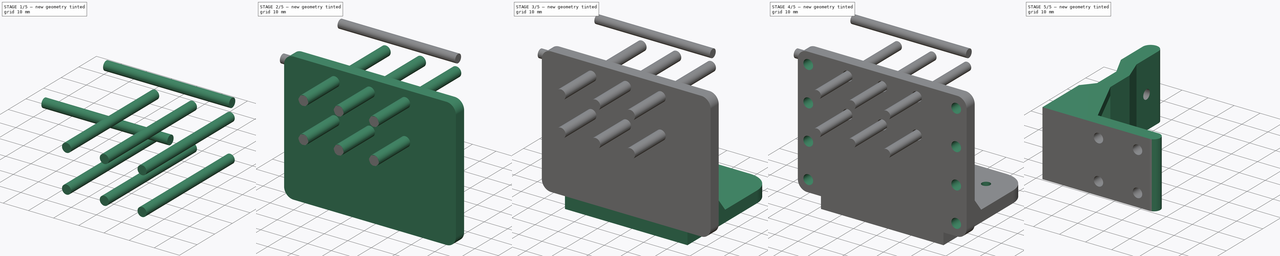
[diagram: build sequence overview — one tinted view per stage of 5, left to right]
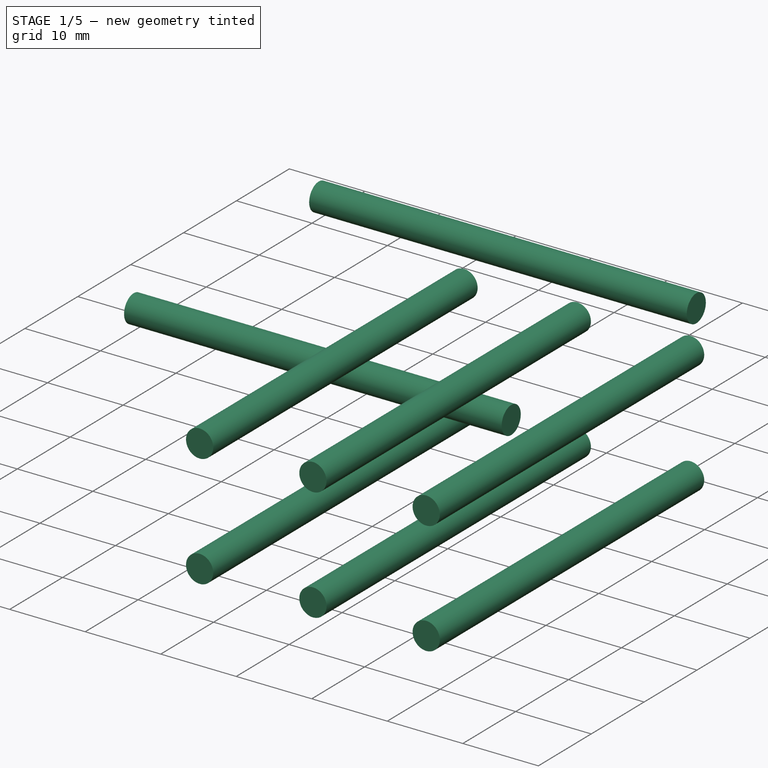
[diagram: stage 1 of 5 — iso view after this stage's code; geometry added in this stage tinted green]
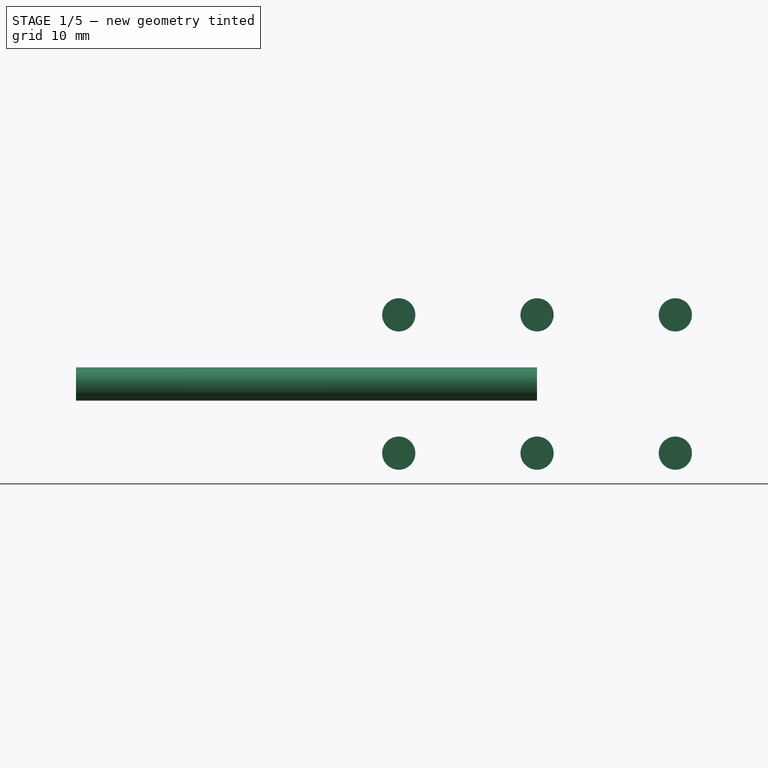
[diagram: stage 1 of 5 — front view after this stage's code; geometry added in this stage tinted green]
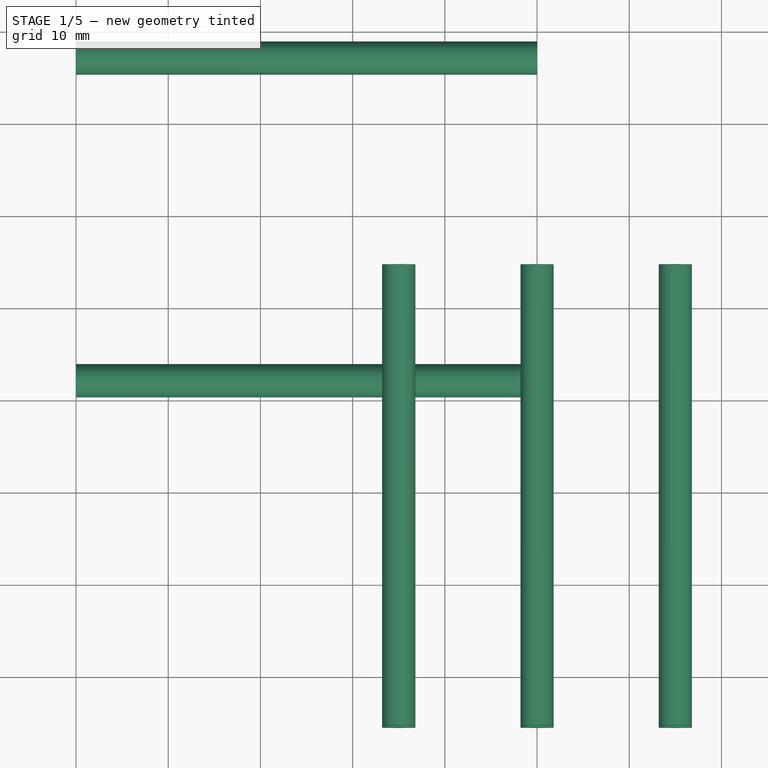
[diagram: stage 1 of 5 — top view after this stage's code; geometry added in this stage tinted green]
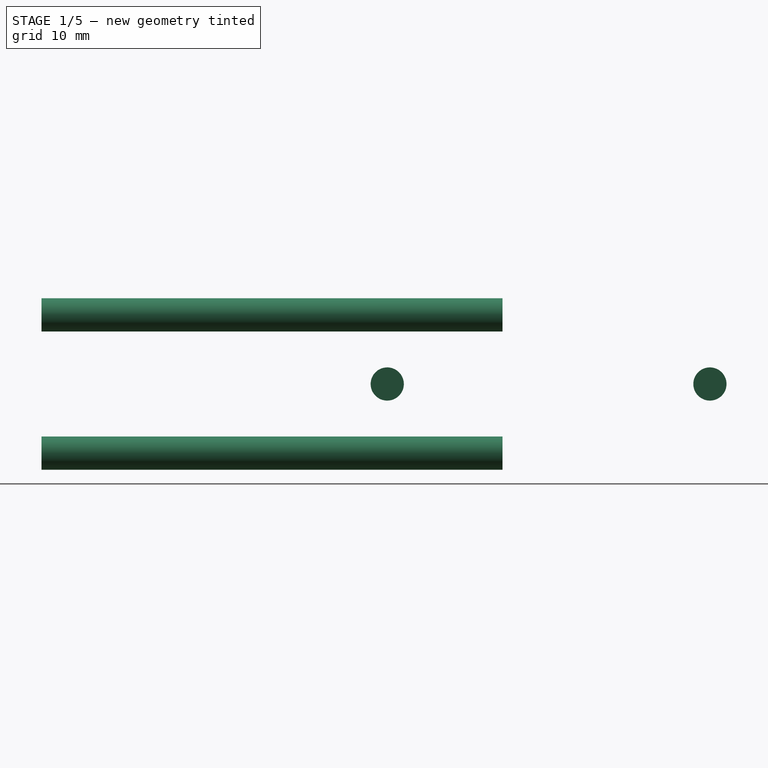
[diagram: stage 1 of 5 — right view after this stage's code; geometry added in this stage tinted green]
FCSTD DOCUMENT  (FreeCAD 0.21R33771 (Git))
Label: stepper_mount
License: All rights reserved
LicenseURL: http://en.wikipedia.org/wiki/All_rights_reserved
objects: Part::Cylinder×6, Part::FeaturePython×6, Part::MultiFuse×4, Sketcher::SketchObject×3, Part::Box×2, Part::Fillet×2, Part::Cut×2, Part::Extrusion×2, PartDesign::Pad×1, Spreadsheet::Sheet×1, Part::Mirroring×1
note: 24 computed .brp shape members not serialized (recipe doc carries the construction recipe); baked Part::Feature solids carry a one-line shape summary decoded from their .brp

FEATURE [Part::Cylinder] Cylinder100  label="bolt hole"
  Angle = 360
  AttacherType = Attacher::AttachEngine3D
  FirstAngle = 0
  Height = 50
  Placement = pos=(0,0,-25) rot=(0,0,1;0rad)
  Radius = 1.8
  SecondAngle = 0
  expr: .Placement.Base.z = -Height / 2
  expr: Radius = <<p_stepper>>.bolt_hole_r
FEATURE [Part::FeaturePython] Array004  label="bolt hole array"  # Draft array (typed FeaturePython)
  AlwaysSyncPlacement = false
  Angle = 360
  ArrayType = 0
  Axis = (0,0,1)
  Base = -> Cylinder100
  Center = (0,0,0)
  Count = 6
  ExpandArray = false
  Fuse = false
  IntervalAxis = (0,0,0)
  IntervalX = (15,0,0)
  IntervalY = (0,15,0)
  IntervalZ = (0,0,100)
  NumberCircles = 3
  NumberPolar = 5
  NumberX = 3
  NumberY = 2
  NumberZ = 1
  Placement = pos=(-15,-20.5,40) rot=(1,0,0;1.5708rad)
  PlacementList = 6 placements: [(0,0,-25),(0,15,-25),(15,0,-25),(15,15,-25),(30,0,-25),(30,15,-25)]
  RadialDistance = 50
  ScaleList = (6) [(1,1,1),(1,1,1),(1,1,1),(1,1,1),(1,1,1),(1,1,1)]
  Symmetry = 1
  TangentialDistance = 25
  expr: .Placement.Base.x = -.IntervalX.x * (3 - 1) / 2
  expr: .Placement.Base.y = -<<p_stepper>>.bolt_hole_dist / 2 - <<p_stepper>>.stepper_mount_wall
  expr: .Placement.Base.z = <<p_stepper>>.bottom_plate_size - .IntervalY.y
FEATURE [Part::Cylinder] Cylinder101  label="wall attachment hole"
  Angle = 360
  AttacherType = Attacher::AttachEngine3D
  FirstAngle = 0
  Height = 50
  Placement = pos=(-50,-8,47.5) rot=(0,1,0;1.5708rad)
  Radius = 1.8
  SecondAngle = 0
  expr: .Placement.Base.x = -Height
  expr: Radius = <<p_stepper>>.bolt_hole_r
FEATURE [Part::FeaturePython] Array005  label="wall attachment hole array"  # Draft array (typed FeaturePython)
  AlwaysSyncPlacement = false
  Angle = 360
  ArrayType = 0
  Axis = (0,0,1)
  Base = -> Cylinder101
  Center = (0,0,0)
  Count = 2
  ExpandArray = false
  Fuse = false
  IntervalAxis = (0,0,0)
  IntervalX = (100,0,0)
  IntervalY = (0,35,0)
  IntervalZ = (0,0,100)
  NumberCircles = 3
  NumberPolar = 5
  NumberX = 1
  NumberY = 2
  NumberZ = 1
  PlacementList = 2 placements: [(-50,-8,47.5),(-50,27,47.5)]
  RadialDistance = 50
  ScaleList = (2) [(1,1,1),(1,1,1)]
  Symmetry = 1
  TangentialDistance = 25
FEATURE [Part::MultiFuse] Fusion008  label="wall attachment hole fusion"
  Shapes = -> [Array004,Array005]
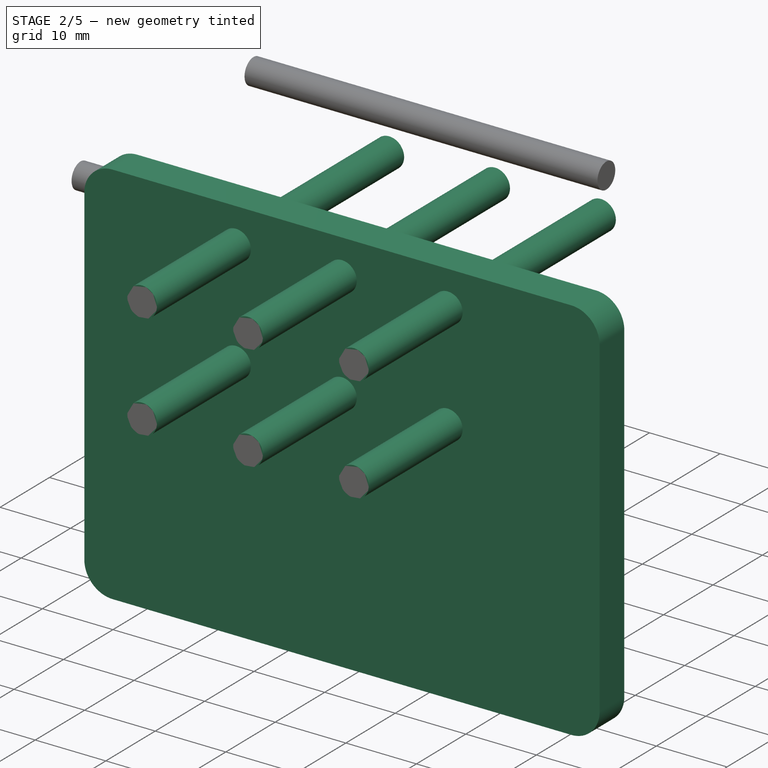
[diagram: stage 2 of 5 — iso view after this stage's code; geometry added in this stage tinted green]
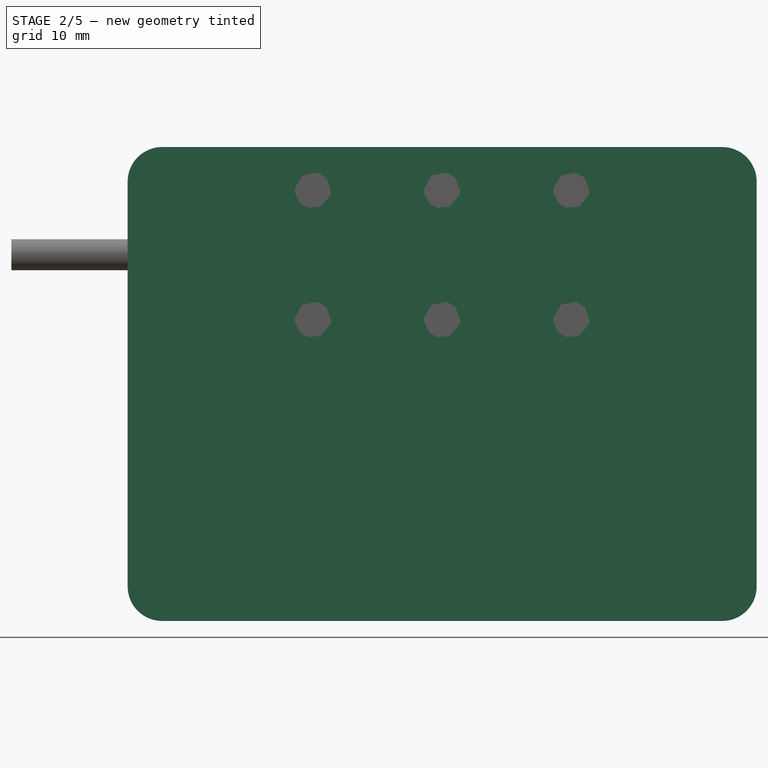
[diagram: stage 2 of 5 — front view after this stage's code; geometry added in this stage tinted green]
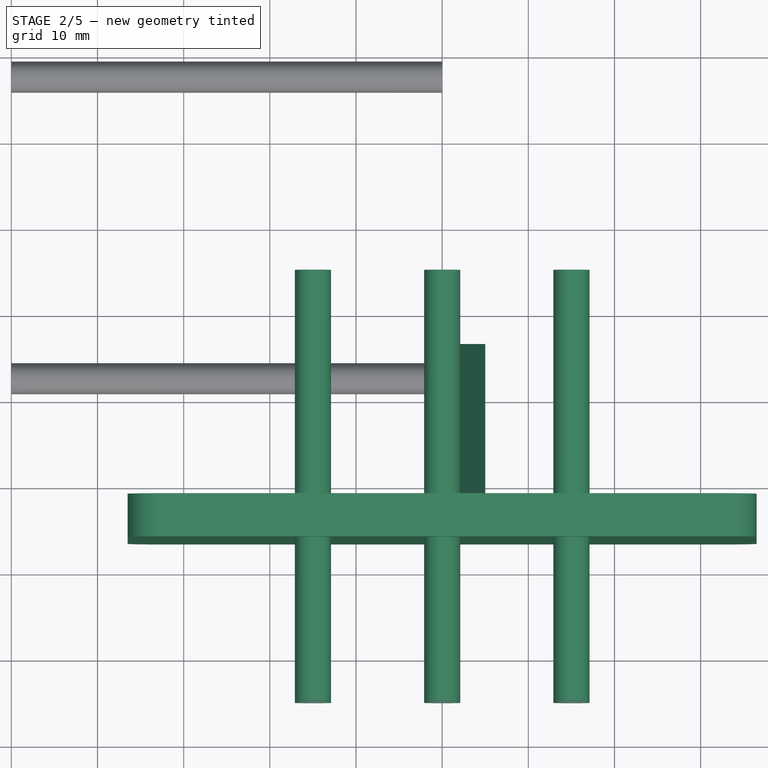
[diagram: stage 2 of 5 — top view after this stage's code; geometry added in this stage tinted green]
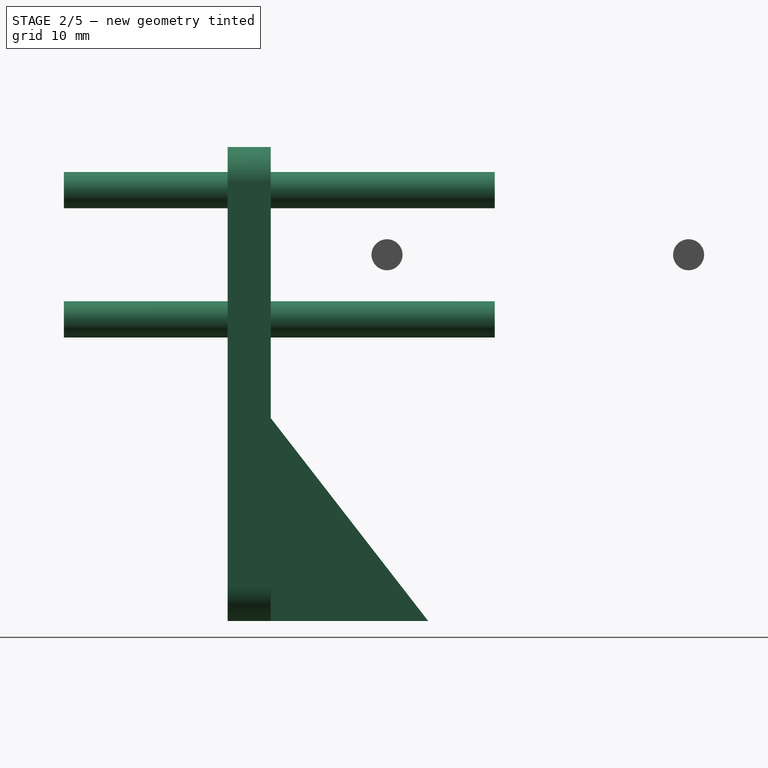
[diagram: stage 2 of 5 — right view after this stage's code; geometry added in this stage tinted green]
FEATURE [Part::Box] Box006  label="stepper mount bottom"
  AttacherType = Attacher::AttachEngine3D
  Height = 55
  Length = 73
  Placement = pos=(-36.5,-26.5,5) rot=(0,0,1;0rad)
  Width = 5
  expr: .Placement.Base.x = -Length / 2
  expr: .Placement.Base.y = -<<p_stepper>>.stepper_size / 2 - <<p_stepper>>.stepper_mount_wall
  expr: .Placement.Base.z = <<p_stepper>>.stepper_mount_wall
  expr: Height = <<p_stepper>>.bottom_plate_size
  expr: Length = <<p_stepper>>.stepper_size + 2 * <<p_stepper>>.stepper_mount_wall + 20 mm
  expr: Width = <<p_stepper>>.stepper_mount_wall
FEATURE [Sketcher::SketchObject] Sketch001
  FullyConstrained = false
  MapMode = 5
  Placement = pos=(0,0,0) rot=(0.57735,0.57735,0.57735;2.0944rad)
  expr: Constraints[6] = <<p_stepper>>.bottom_plate_size
  sketch-geometry (3):
    g0: LineSegment StartX=-26.5 StartY=5 StartZ=0 EndX=-3.22422 EndY=5 EndZ=0
    g1: LineSegment StartX=-3.22422 StartY=5 StartZ=0 EndX=-26.5 EndY=35 EndZ=0
    g2: LineSegment StartX=-26.5 StartY=35 StartZ=0 EndX=-26.5 EndY=5 EndZ=0
  constraints (7):
    c: Coincident(g0,g-3)
    c: Horizontal(g0)
    c: Coincident(g1,g0)
    c: Coincident(g2,g1)
    c: Coincident(g2,g0)
    c: Vertical(g2)
    c: DistanceY(g2,g2) = 55
FEATURE [PartDesign::Pad] Pad001
  Direction = (1,0,0)
  Length = 5
  Length2 = 100
  Placement = pos=(0,0,0) rot=(0.57735,0.57735,0.57735;2.0944rad)
  Profile = -> Sketch001
  Type = 0
  expr: Length = <<p_stepper>>.stepper_mount_wall
FEATURE [Spreadsheet::Sheet] Spreadsheet002  label="p_stepper"
  cells = A1='stepper_mount_wall; B1(stepper_mount_wall)==5 mm; A2='bolt_hole_dist; B2(bolt_hole_dist)==31 mm; A3='central_hole_r; B3(central_hole_r)==11.5 mm; A4='bolt_hole_r; B4(bolt_hole_r)==1.8 mm; A5='stepper_size; B5(stepper_size)==43 mm; A6='bottom_plate_size; B6(bottom_plate_size)==55 mm; A7='bottom_hole_r; B7(bottom_hole_r)==2.1 mm; A8='bottom_hole_x_dist; B8(bottom_hole_x_dist)==64 mm; A9='bottom_hole_y_dist; B9(bottom_hole_y_dist)==15 mm; A10='puller_hole_r; B10(puller_hole_r)==1.8 mm; A11='inserter_hole_r; B11(inserter_hole_r)==2.1 mm
FEATURE [Part::Fillet] Fillet  label="stepper mount bottom fillet"
  Base = -> Box006
  Edges = 4 edges r=4: [Edge2,Edge4,Edge6,Edge8]
FEATURE [Part::Cylinder] Cylinder099  label="inserter hole"
  Angle = 360
  AttacherType = Attacher::AttachEngine3D
  FirstAngle = 0
  Height = 50
  Placement = pos=(0,0,-25) rot=(0,0,1;0rad)
  Radius = 2.1
  SecondAngle = 0
  expr: .Placement.Base.z = -Height / 2
  expr: Radius = <<p_stepper>>.inserter_hole_r
FEATURE [Part::FeaturePython] Array003  label="inserter hole array"  # Draft array (typed FeaturePython)
  AlwaysSyncPlacement = false
  Angle = 360
  ArrayType = 0
  Axis = (0,0,1)
  Base = -> Cylinder099
  Center = (0,0,0)
  Count = 6
  ExpandArray = false
  Fuse = false
  IntervalAxis = (0,0,0)
  IntervalX = (15,0,0)
  IntervalY = (0,15,0)
  IntervalZ = (0,0,100)
  NumberCircles = 3
  NumberPolar = 5
  NumberX = 3
  NumberY = 2
  NumberZ = 1
  Placement = pos=(-15,-20.5,40) rot=(1,0,0;1.5708rad)
  PlacementList = 6 placements: [(0,0,-25),(0,15,-25),(15,0,-25),(15,15,-25),(30,0,-25),(30,15,-25)]
  RadialDistance = 50
  ScaleList = (6) [(1,1,1),(1,1,1),(1,1,1),(1,1,1),(1,1,1),(1,1,1)]
  Symmetry = 1
  TangentialDistance = 25
  expr: .Placement.Base.x = -.IntervalX.x * (3 - 1) / 2
  expr: .Placement.Base.y = -<<p_stepper>>.bolt_hole_dist / 2 - <<p_stepper>>.stepper_mount_wall
  expr: .Placement.Base.z = <<p_stepper>>.bottom_plate_size - .IntervalY.y
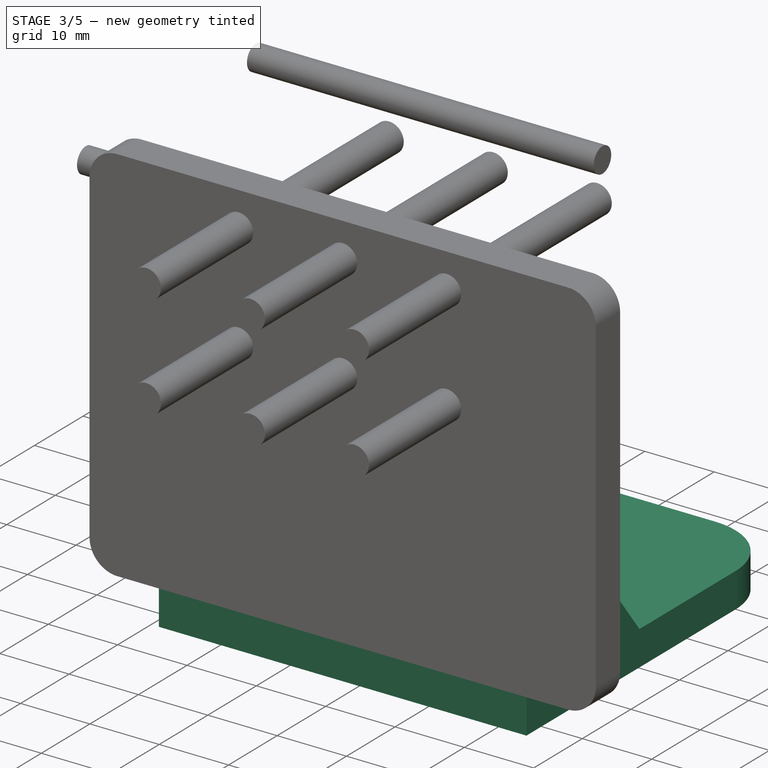
[diagram: stage 3 of 5 — iso view after this stage's code; geometry added in this stage tinted green]
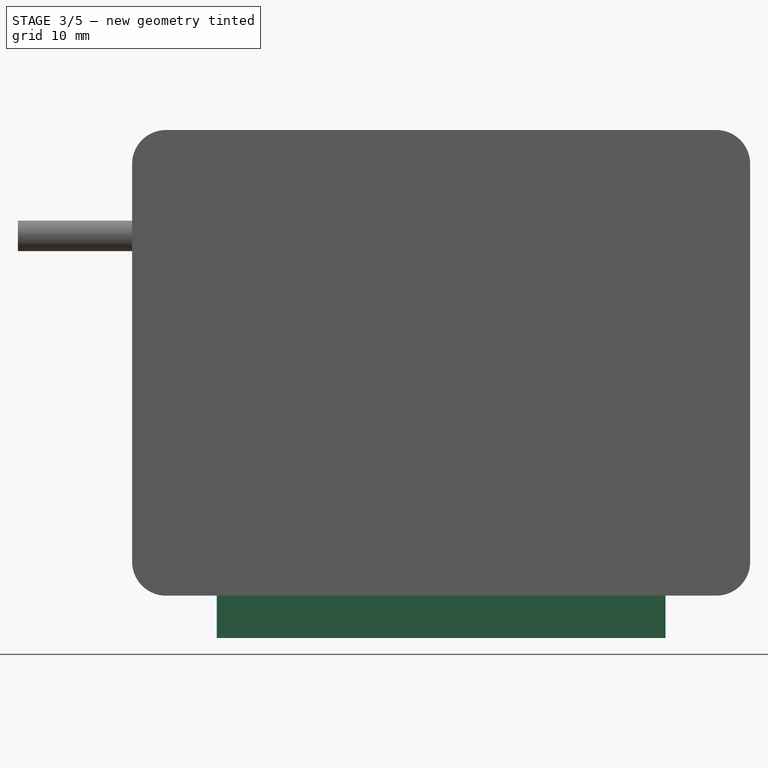
[diagram: stage 3 of 5 — front view after this stage's code; geometry added in this stage tinted green]
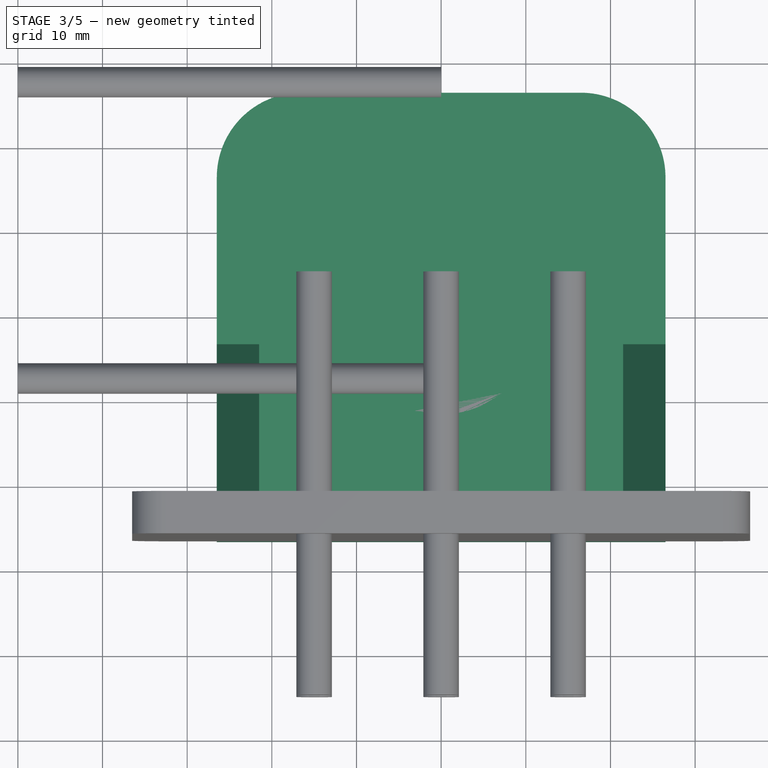
[diagram: stage 3 of 5 — top view after this stage's code; geometry added in this stage tinted green]
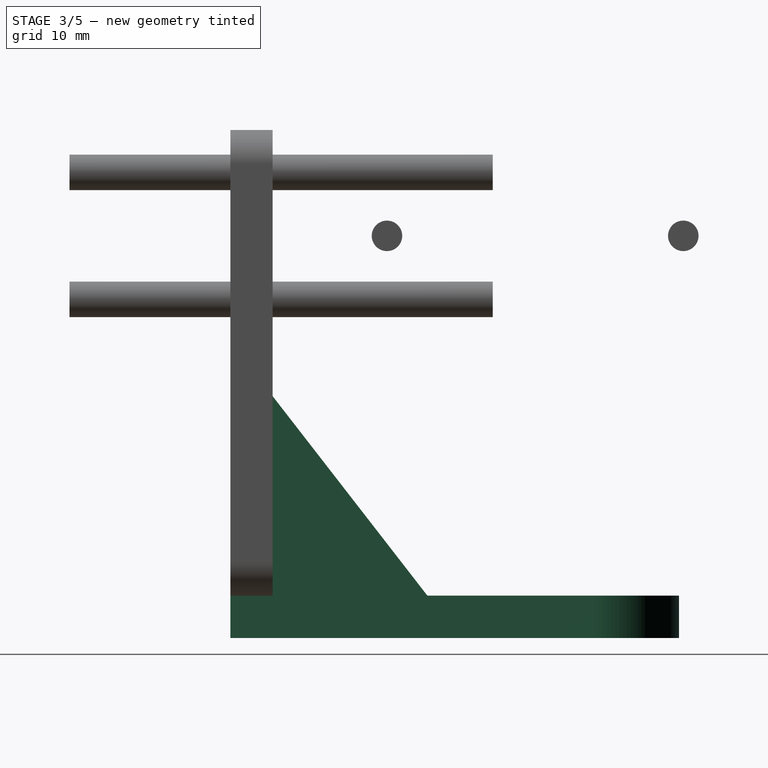
[diagram: stage 3 of 5 — right view after this stage's code; geometry added in this stage tinted green]
FEATURE [Part::Box] Box005  label="stepper mount cube"
  AttacherType = Attacher::AttachEngine3D
  Height = 5
  Length = 53
  Placement = pos=(-26.5,-26.5,0) rot=(0,0,1;0rad)
  Width = 53
  expr: .Placement.Base.x = -Length / 2
  expr: .Placement.Base.y = -Width / 2
  expr: Height = <<p_stepper>>.stepper_mount_wall
  expr: Length = <<p_stepper>>.stepper_size + 2 * <<p_stepper>>.stepper_mount_wall
  expr: Width = <<p_stepper>>.stepper_size + 2 * <<p_stepper>>.stepper_mount_wall
FEATURE [Part::Cylinder] Cylinder097  label="stepper central hole"
  Angle = 360
  AttacherType = Attacher::AttachEngine3D
  FirstAngle = 0
  Height = 5
  Radius = 11.5
  SecondAngle = 0
  expr: Height = <<p_stepper>>.stepper_mount_wall
  expr: Radius = <<p_stepper>>.central_hole_r
FEATURE [Part::Cylinder] Cylinder098  label="stepper bolt hole"
  Angle = 360
  AttacherType = Attacher::AttachEngine3D
  FirstAngle = 0
  Height = 5
  Radius = 1.8
  SecondAngle = 0
  expr: Height = <<p_stepper>>.stepper_mount_wall
  expr: Radius = <<p_stepper>>.bolt_hole_r
FEATURE [Part::Fillet] Fillet001  label="stepper mount cube fillet"
  Base = -> Box005
  Edges = 2 edges r=10: [Edge3,Edge7]
FEATURE [Part::FeaturePython] Array002  label="side array"  # Draft array (typed FeaturePython)
  AlwaysSyncPlacement = false
  Angle = 360
  ArrayType = 0
  Axis = (0,0,1)
  Base = -> Pad001
  Center = (0,0,0)
  Count = 2
  ExpandArray = false
  Fuse = false
  IntervalAxis = (0,0,0)
  IntervalX = (48,0,0)
  IntervalY = (0,100,0)
  IntervalZ = (0,0,100)
  NumberCircles = 3
  NumberPolar = 5
  NumberX = 2
  NumberY = 1
  NumberZ = 1
  Placement = pos=(-26.5,0,0) rot=(0,0,1;0rad)
  PlacementList = 2 placements: [(0,0,0),(48,0,0)]
  RadialDistance = 50
  ScaleList = (2) [(1,1,1),(1,1,1)]
  Symmetry = 1
  TangentialDistance = 25
  expr: .IntervalX.x = <<stepper mount cube>>.Length - <<p_stepper>>.stepper_mount_wall
  expr: .Placement.Base.x = -(.IntervalX.x + <<p_stepper>>.stepper_mount_wall) / 2
FEATURE [Part::MultiFuse] Fusion007  label="stepper mount fusion"
  Shapes = -> [Array002,Fillet001,Fillet]
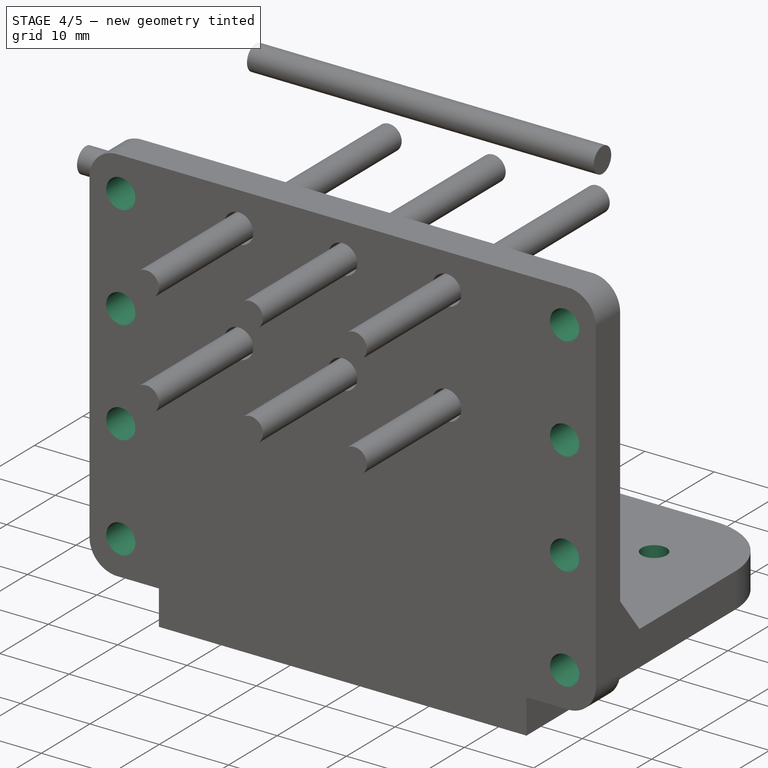
[diagram: stage 4 of 5 — iso view after this stage's code; geometry added in this stage tinted green]
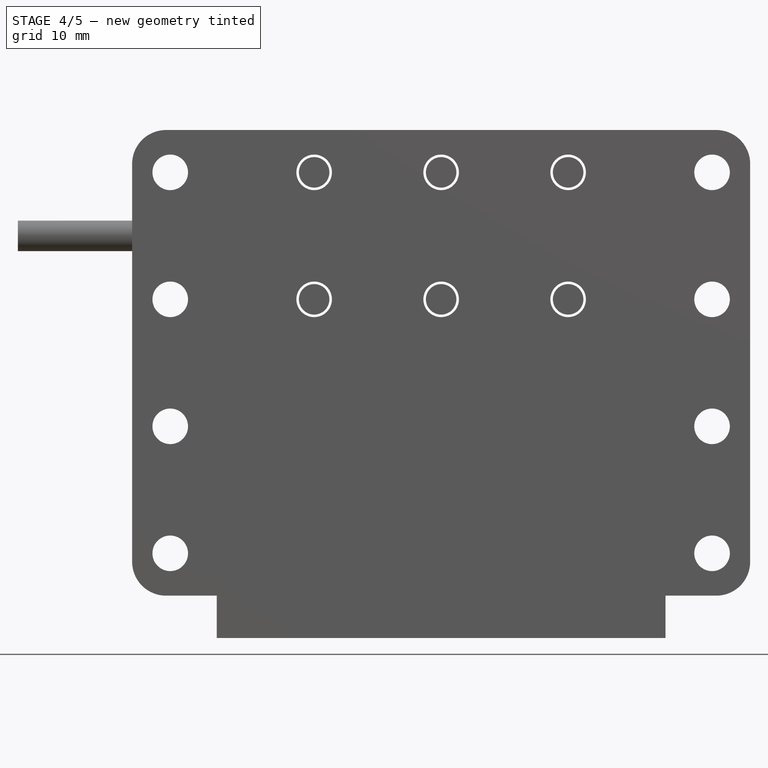
[diagram: stage 4 of 5 — front view after this stage's code; geometry added in this stage tinted green]
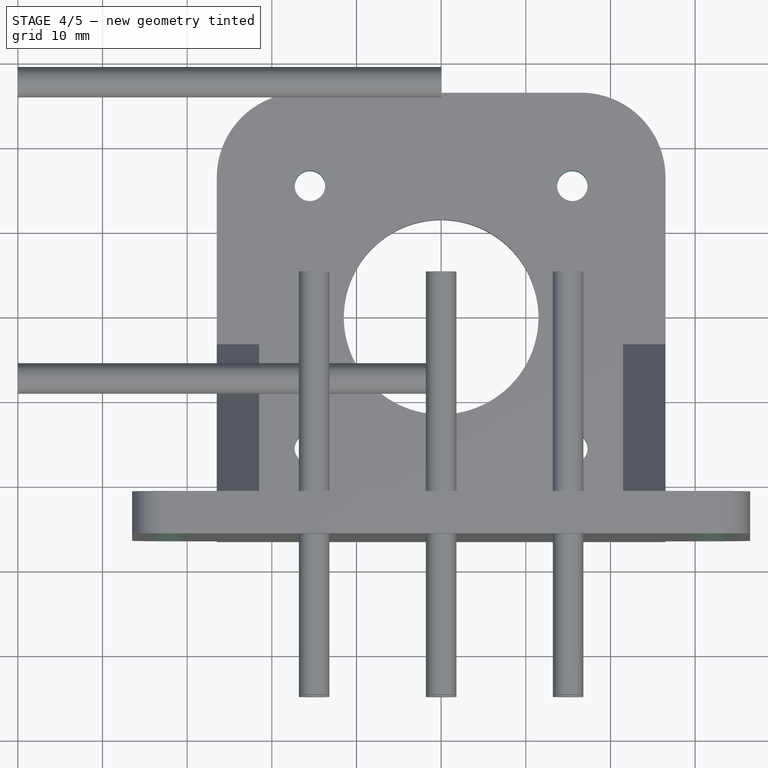
[diagram: stage 4 of 5 — top view after this stage's code; geometry added in this stage tinted green]
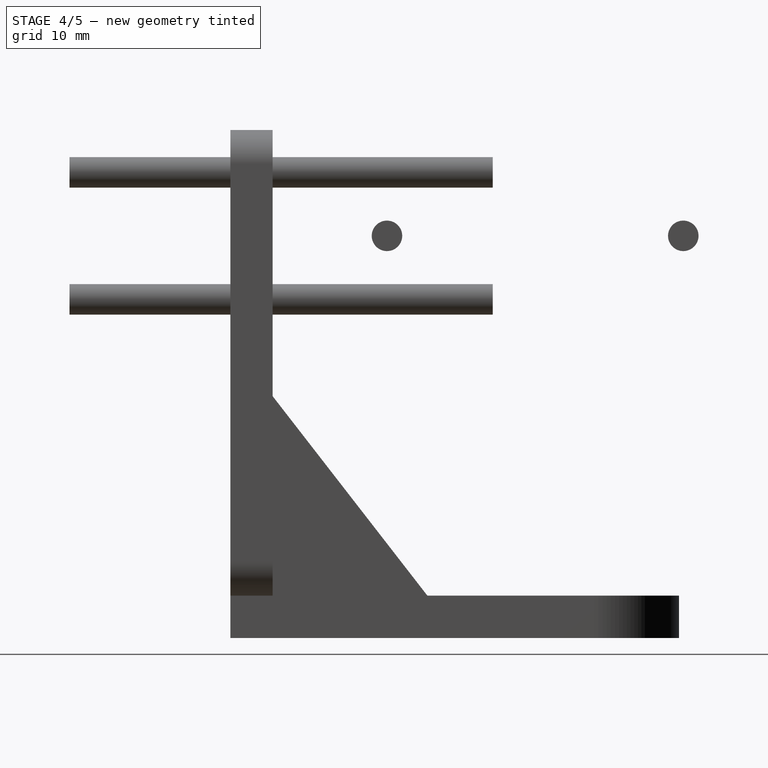
[diagram: stage 4 of 5 — right view after this stage's code; geometry added in this stage tinted green]
FEATURE [Part::Cylinder] Cylinder  label="wide bolt hole"
  Angle = 360
  AttacherType = Attacher::AttachEngine3D
  FirstAngle = 0
  Height = 50
  Placement = pos=(0,0,-25) rot=(0,0,1;0rad)
  Radius = 2.1
  SecondAngle = 0
  expr: .Placement.Base.z = -Height / 2
  expr: Radius = Spreadsheet002.bottom_hole_r
FEATURE [Part::FeaturePython] Array  label="bottom hole array"  # Draft array (typed FeaturePython)
  AlwaysSyncPlacement = false
  Angle = 360
  ArrayType = 0
  Axis = (0,0,1)
  Base = -> Cylinder
  Center = (0,0,0)
  Count = 8
  ExpandArray = false
  Fuse = false
  IntervalAxis = (0,0,0)
  IntervalX = (64,0,0)
  IntervalY = (0,15,0)
  IntervalZ = (0,0,100)
  NumberCircles = 3
  NumberPolar = 5
  NumberX = 2
  NumberY = 4
  NumberZ = 1
  Placement = pos=(-32,-20.5,10) rot=(1,0,0;1.5708rad)
  PlacementList = 8 placements: [(0,0,-25),(0,15,-25),(0,30,-25),(0,45,-25),(64,0,-25),(64,15,-25),(64,30,-25),(64,45,-25)]
  RadialDistance = 50
  ScaleList = (8) [(1,1,1),(1,1,1),(1,1,1),(1,1,1),(1,1,1),(1,1,1),(1,1,1),(1,1,1)]
  Symmetry = 1
  TangentialDistance = 25
  expr: .IntervalX.x = Spreadsheet002.bottom_hole_x_dist
  expr: .IntervalY.y = Spreadsheet002.bottom_hole_y_dist
  expr: .Placement.Base.x = -.IntervalX.x / 2
  expr: .Placement.Base.y = -<<p_stepper>>.bolt_hole_dist / 2 - <<p_stepper>>.stepper_mount_wall
  expr: .Placement.Base.z = <<p_stepper>>.bottom_plate_size - .IntervalY.y * 3
FEATURE [Part::FeaturePython] Array001  label="stepper bolt hole array"  # Draft array (typed FeaturePython)
  AlwaysSyncPlacement = false
  Angle = 360
  ArrayType = 0
  Axis = (0,0,1)
  Base = -> Cylinder098
  Center = (0,0,0)
  Count = 4
  ExpandArray = false
  Fuse = false
  IntervalAxis = (0,0,0)
  IntervalX = (31,0,0)
  IntervalY = (0,31,0)
  IntervalZ = (0,0,100)
  NumberCircles = 3
  NumberPolar = 5
  NumberX = 2
  NumberY = 2
  NumberZ = 1
  Placement = pos=(-15.5,-15.5,0) rot=(0,0,1;0rad)
  PlacementList = 4 placements: [(0,0,0),(0,31,0),(31,0,0),(31,31,0)]
  RadialDistance = 50
  ScaleList = (4) [(1,1,1),(1,1,1),(1,1,1),(1,1,1)]
  Symmetry = 1
  TangentialDistance = 25
  expr: .IntervalX.x = <<p_stepper>>.bolt_hole_dist
  expr: .IntervalY.y = <<p_stepper>>.bolt_hole_dist
  expr: .Placement.Base.x = -.IntervalX.x / 2
  expr: .Placement.Base.y = -.IntervalY.y / 2
FEATURE [Part::MultiFuse] Fusion006  label="stepper mount holes"
  Shapes = -> [Cylinder097,Array001,Array,Array003]
FEATURE [Part::Cut] Cut004  label="stepper mount cut"
  Base = -> Fusion007
  Tool = -> Fusion006
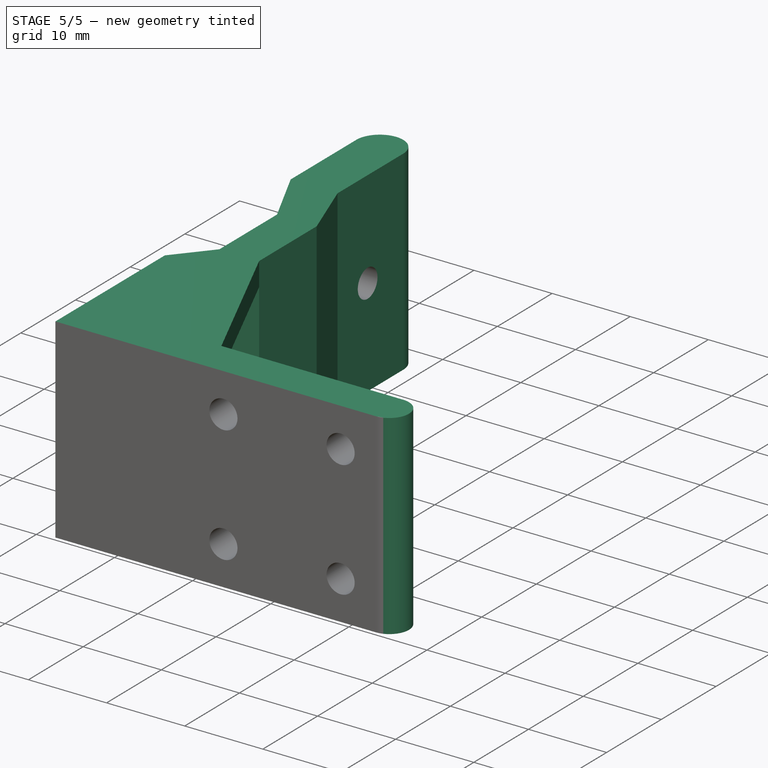
[diagram: stage 5 of 5 — iso view after this stage's code; geometry added in this stage tinted green]
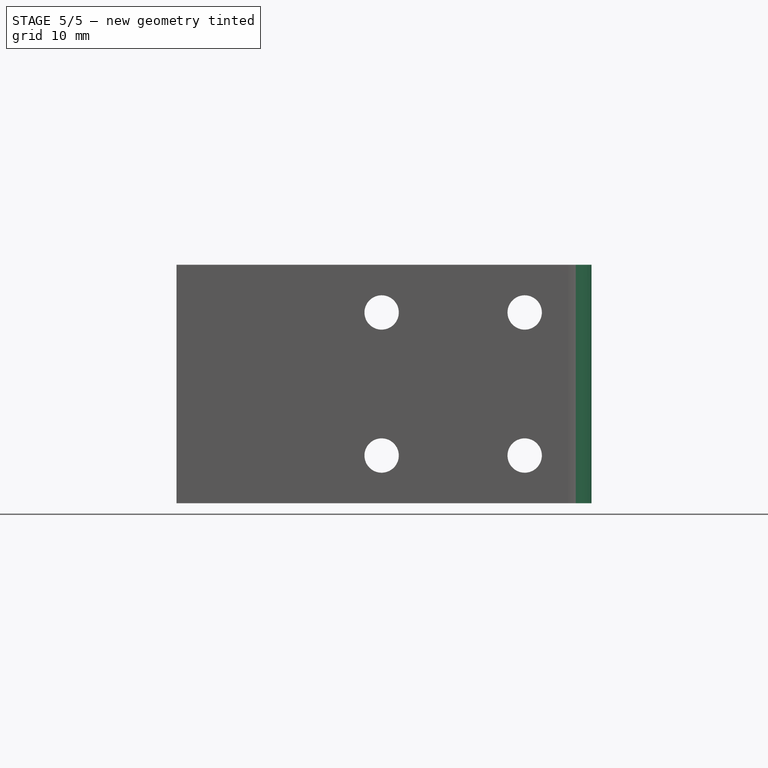
[diagram: stage 5 of 5 — front view after this stage's code; geometry added in this stage tinted green]
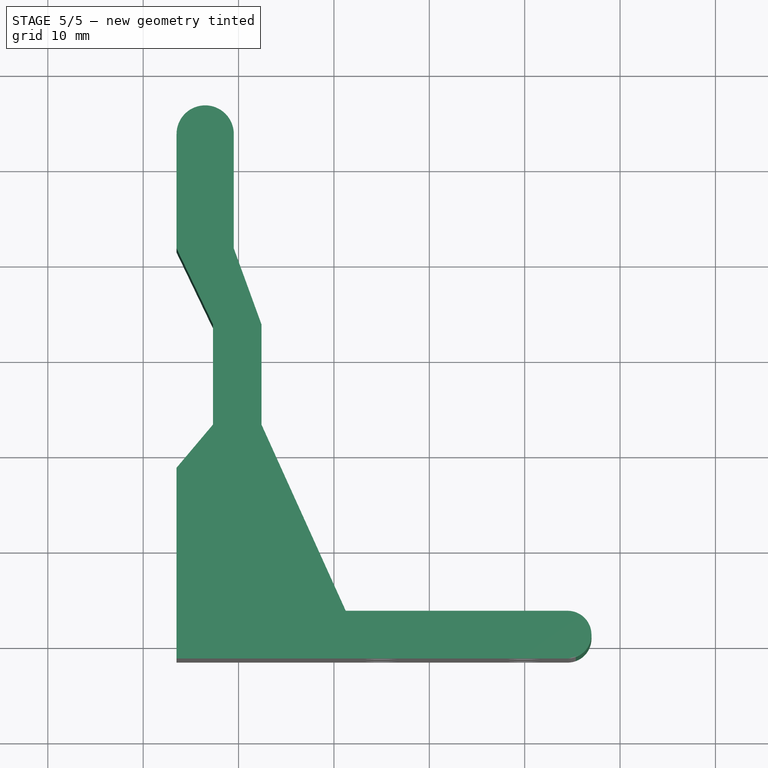
[diagram: stage 5 of 5 — top view after this stage's code; geometry added in this stage tinted green]
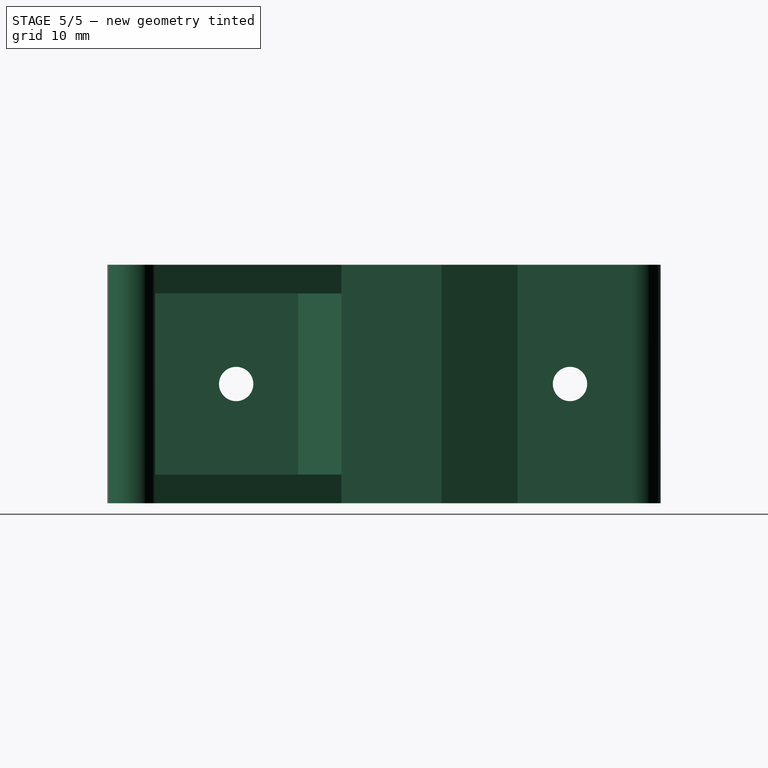
[diagram: stage 5 of 5 — right view after this stage's code; geometry added in this stage tinted green]
FEATURE [Sketcher::SketchObject] Sketch
  ExternalGeometry = -> [Cut004]
  FullyConstrained = false
  sketch-geometry (14):
    g0: ArcOfCircle CenterX=-33.5 CenterY=33.5 CenterZ=0 NormalX=0 NormalY=0 NormalZ=1 AngleXU=0 Radius=3 StartAngle=3e-16 EndAngle=3.14159
    g1: LineSegment StartX=-30.5 StartY=-16.5 StartZ=0 EndX=4.5 EndY=-16.5 EndZ=0
    g2: LineSegment StartX=-36.5 StartY=-21.5 StartZ=0 EndX=4.5 EndY=-21.5 EndZ=0
    g3: ArcOfCircle CenterX=4.5 CenterY=-19 CenterZ=0 NormalX=0 NormalY=0 NormalZ=1 AngleXU=0 Radius=2.5 StartAngle=4.71239 EndAngle=7.85398
    g4: LineSegment StartX=-36.5 StartY=-21.5 StartZ=0 EndX=-36.5 EndY=-1.5 EndZ=0
    g5: LineSegment StartX=-36.5 StartY=-1.5 StartZ=0 EndX=-32.6788 EndY=3.03288 EndZ=0
    g6: LineSegment StartX=-32.6788 StartY=3.03288 StartZ=0 EndX=-32.6788 EndY=13.5445 EndZ=0
    g7: LineSegment StartX=-32.6788 StartY=13.5445 StartZ=0 EndX=-36.5 EndY=21.5 EndZ=0
    g8: LineSegment StartX=-36.5 StartY=21.5 StartZ=0 EndX=-36.5 EndY=33.5 EndZ=0
    g9: LineSegment StartX=-30.5 StartY=33.5 StartZ=0 EndX=-30.5 EndY=21.5 EndZ=0
    g10: LineSegment StartX=-30.5 StartY=21.5 StartZ=0 EndX=-27.5997 EndY=13.5445 EndZ=0
    g11: LineSegment StartX=-27.5997 StartY=13.5445 StartZ=0 EndX=-27.5997 EndY=3.03288 EndZ=0
    g12: LineSegment StartX=-27.5997 StartY=3.03288 StartZ=0 EndX=-30.5 EndY=-1.5 EndZ=0
    g13: LineSegment StartX=-30.5 StartY=-1.5 StartZ=0 EndX=-30.5 EndY=-16.5 EndZ=0
  constraints (33):
    c: Radius(g0) = 3
    c: Horizontal(g1)
    c: PointOnObject(g2,g-4)
    c: Tangent(g3,g1) = 1.5708
    c: Tangent(g3,g2) = -1.5708
    c: Radius(g3) = 2.5
    c: DistanceX(g1,g1) = 35
    c: Vertical(g4)
    c: Coincident(g5,g4)
    c: Coincident(g6,g5)
    c: Coincident(g7,g6)
    c: Coincident(g8,g7)
    c: Coincident(g8,g0)
    c: DistanceX(g0,g-1) = 33.5
    c: DistanceY(g-1,g0) = 33.5
    c: Coincident(g2,g4)
    c: Coincident(g9,g0)
    c: Vertical(g9)
    c: Coincident(g10,g9)
    c: Coincident(g11,g10)
    c: Vertical(g11)
    c: Coincident(g12,g11)
    c: Coincident(g13,g12)
    c: Coincident(g13,g1)
    c: Vertical(g13)
    c: Vertical(g8)
    c: DistanceY(g1,g4) = 15
    c: DistanceY(g1,g7) = 38
    c: DistanceY(g6,g10) = 0
    c: DistanceY(g5,g11) = 0
    c: Vertical(g6)
    c: DistanceY(g9,g7) = 0
    c: DistanceY(g12,g4) = 0
FEATURE [Part::Extrusion] Extrude
  Base = -> Sketch
  Dir = (0,0,1)
  DirMode = 2
  FaceMakerClass = Part::FaceMakerBullseye
  LengthFwd = 25
  LengthRev = 0
  Solid = true
  Symmetric = true
FEATURE [Sketcher::SketchObject] Sketch002
  ExternalGeometry = -> [Cut004,Extrude]
  FullyConstrained = true
  sketch-geometry (4):
    g0: LineSegment StartX=-36.5 StartY=-21.5 StartZ=0 EndX=-16.5 EndY=-21.5 EndZ=0
    g1: LineSegment StartX=-27.5997 StartY=3.03288 StartZ=0 EndX=-16.5 EndY=-21.5 EndZ=0
    g2: LineSegment StartX=-36.5 StartY=-21.5 StartZ=0 EndX=-36.5 EndY=-1.5 EndZ=0
    g3: LineSegment StartX=-36.5 StartY=-1.5 StartZ=0 EndX=-27.5997 EndY=3.03288 EndZ=0
  constraints (9):
    c: Horizontal(g0)
    c: Coincident(g1,g0)
    c: Coincident(g0,g-3)
    c: Coincident(g2,g0)
    c: Coincident(g2,g-4)
    c: Coincident(g3,g2)
    c: Coincident(g3,g1)
    c: Coincident(g1,g-5)
    c: DistanceX(g0,g0) = 20
FEATURE [Part::Extrusion] Extrude001
  Base = -> Sketch002
  Dir = (0,0,1)
  DirMode = 2
  FaceMakerClass = Part::FaceMakerBullseye
  LengthFwd = 3
  LengthRev = 0
  Placement = pos=(0,0,-12.5) rot=(0,0,1;0rad)
  Solid = true
  Symmetric = false
  expr: .Placement.Base.z = -Extrude.LengthFwd / 2
FEATURE [Part::Mirroring] Part__Mirroring  label="Extrude001 (Mirror #1)"
  Base = (0,0,0)
  Normal = (0,0,1)
  Source = -> Extrude001
FEATURE [Part::MultiFuse] Fusion  label="wall attachment fusion"
  Placement = pos=(0,0,47.5) rot=(0,0,1;0rad)
  Shapes = -> [Extrude,Extrude001,Part__Mirroring]
FEATURE [Part::Cut] Cut005  label="wall attachment cut"
  Base = -> Fusion
  Tool = -> Fusion008
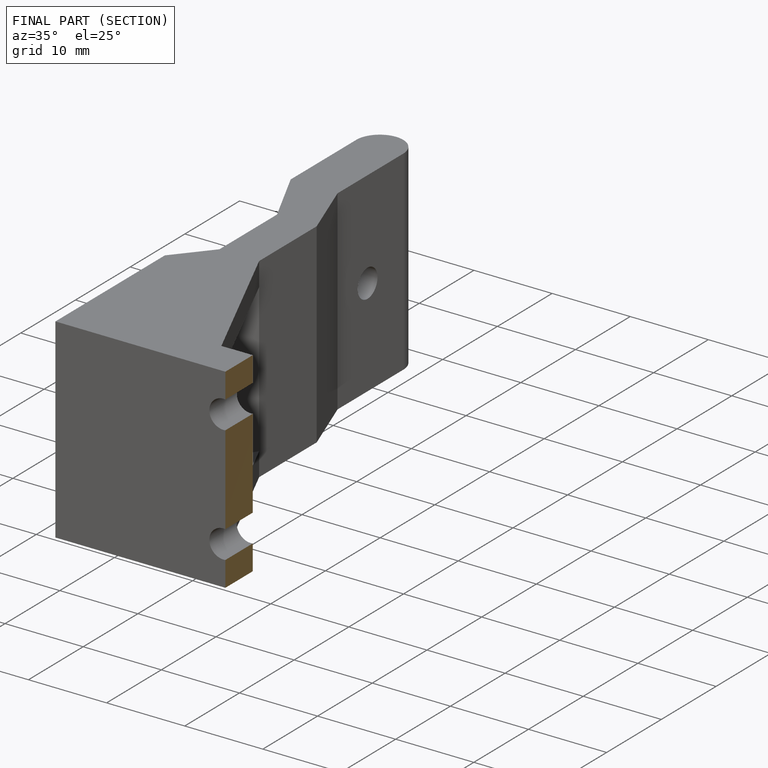
[diagram: finished part — half-section view (interior)]
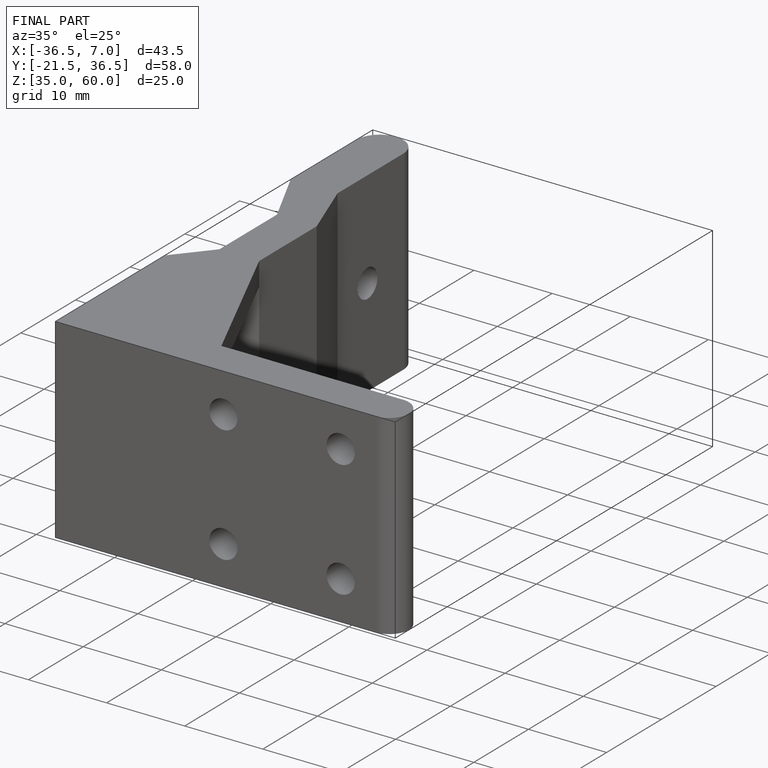
[diagram: finished part — iso view with bounding-box wireframe]
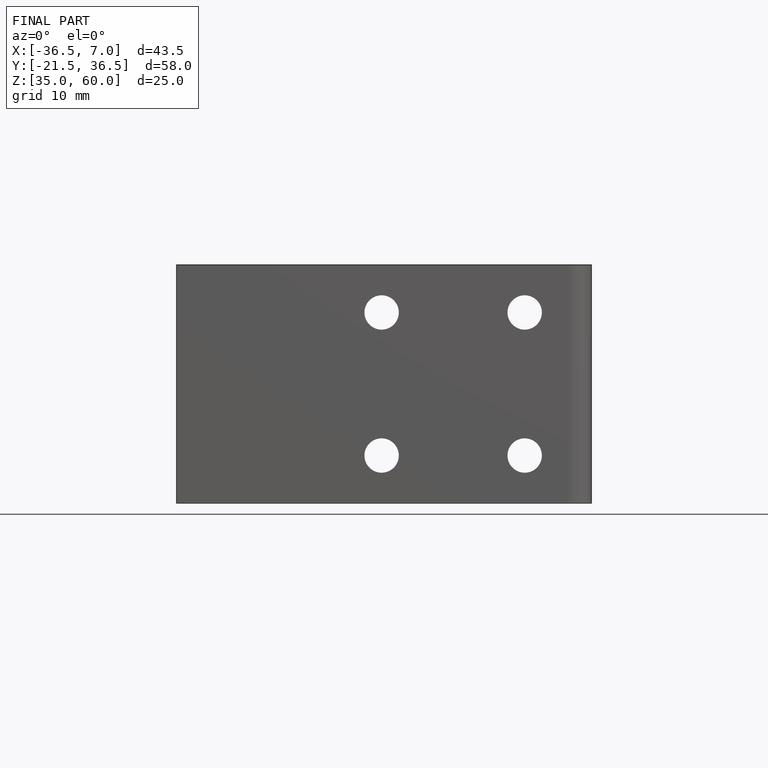
[diagram: finished part — front view with bounding-box wireframe]
